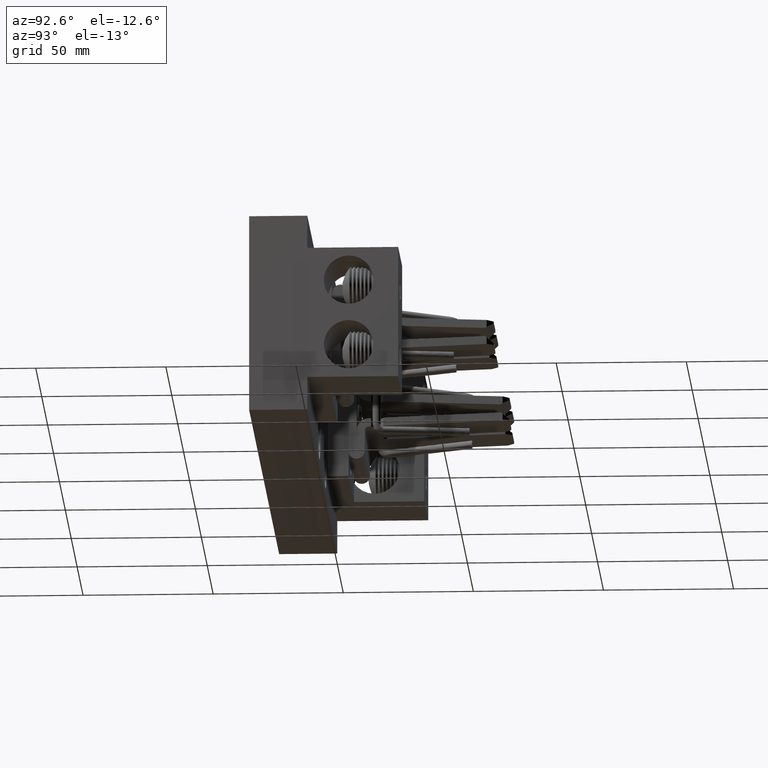
[diagram: clean part render]
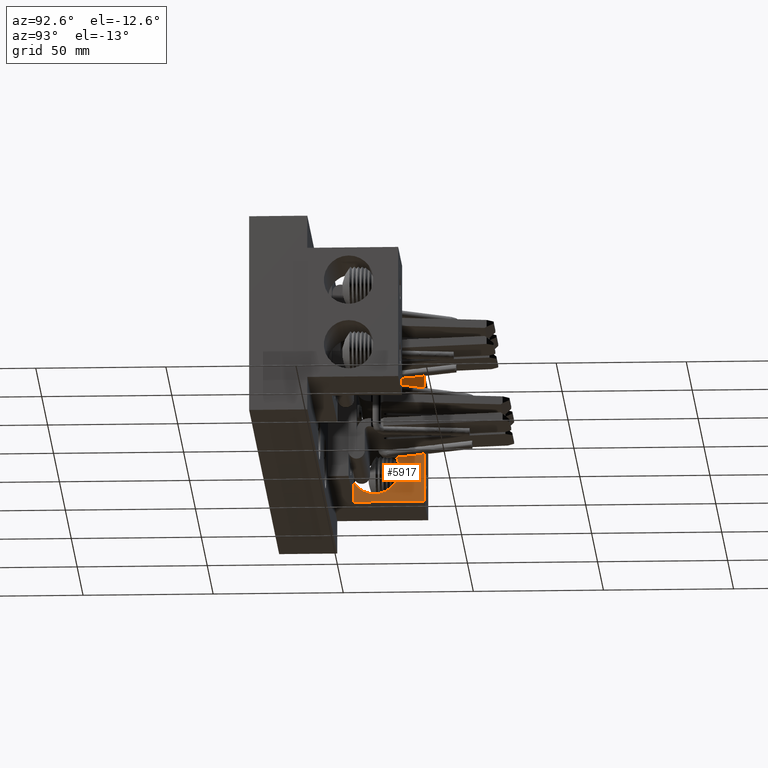
[diagram: same view with one face highlighted and labeled with its STEP entity id]
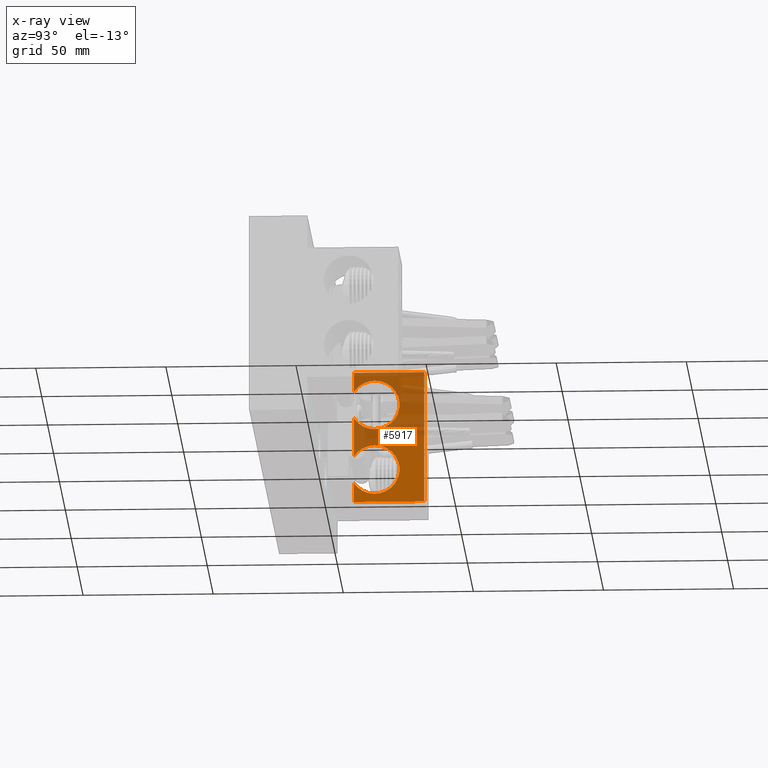
[diagram: x-ray of the same camera — body ghosted, the highlighted face saturated]
A machine part, auxiliary view. The second image highlights one B-rep face of the part: STEP entity #5917.
The next image is the same camera in x-ray: the body ghosted, the highlighted face saturated — about 48% of this face is hidden behind the body in this view.
In plain terms, the highlighted planar face has unit normal (-1, 0, 0).
Its self-contained STEP definition (entity closure, byte-faithful):
#242 = DIRECTION ( 'NONE',  ( 0.0000000000000000000, 1.000000000000000000, 0.0000000000000000000 ) ) ;
#254 = CARTESIAN_POINT ( 'NONE',  ( 1.312000000000000100, 1.375000000000000200, -1.000000000000000000 ) ) ;
#406 = DIRECTION ( 'NONE',  ( 0.0000000000000000000, 0.0000000000000000000, 1.000000000000000000 ) ) ;
#810 = VERTEX_POINT ( 'NONE', #17691 ) ;
#967 = CARTESIAN_POINT ( 'NONE',  ( 1.312000000000000100, 0.3119999999999998300, -0.2934667097051911800 ) ) ;
#1718 = FACE_OUTER_BOUND ( 'NONE', #17610, .T. ) ;
#1719 = DIRECTION ( 'NONE',  ( 0.0000000000000000000, 1.000000000000000000, 0.0000000000000000000 ) ) ;
#2269 = CIRCLE ( 'NONE', #7383, 0.3749999999999998300 ) ;
#2595 = CIRCLE ( 'NONE', #8368, 0.3749999999999998300 ) ;
#2680 = EDGE_CURVE ( 'NONE', #19076, #4228, #22764, .T. ) ;
#2782 = CARTESIAN_POINT ( 'NONE',  ( 1.312000000000000100, 0.3119999999999998300, -1.000000000000000000 ) ) ;
#4079 = EDGE_CURVE ( 'NONE', #5733, #4228, #2269, .T. ) ;
#4228 = VERTEX_POINT ( 'NONE', #967 ) ;
#4566 = VECTOR ( 'NONE', #1719, 39.37007874015748100 ) ;
#4585 = VECTOR ( 'NONE', #11054, 39.37007874015748100 ) ;
#4646 = VERTEX_POINT ( 'NONE', #21466 ) ;
#4759 = VECTOR ( 'NONE', #12050, 39.37007874015748100 ) ;
#4885 = ORIENTED_EDGE ( 'NONE', *, *, #4079, .F. ) ;
#5733 = VERTEX_POINT ( 'NONE', #16129 ) ;
#5917 = ADVANCED_FACE ( 'NONE', ( #1718 ), #7353, .F. ) ;
#6447 = CARTESIAN_POINT ( 'NONE',  ( 1.312000000000000100, 1.375000000000000200, 1.000000000000000000 ) ) ;
#6531 = ORIENTED_EDGE ( 'NONE', *, *, #21026, .T. ) ;
#6813 = ORIENTED_EDGE ( 'NONE', *, *, #15375, .T. ) ;
#6878 = EDGE_CURVE ( 'NONE', #15445, #4646, #7928, .T. ) ;
#6987 = LINE ( 'NONE', #20370, #7209 ) ;
#7209 = VECTOR ( 'NONE', #20229, 39.37007874015748100 ) ;
#7231 = VECTOR ( 'NONE', #242, 39.37007874015748100 ) ;
#7278 = CARTESIAN_POINT ( 'NONE',  ( 1.312000000000000100, 0.3119999999999998300, 0.2934667097051912300 ) ) ;
#7353 = PLANE ( 'NONE',  #17948 ) ;
#7383 = AXIS2_PLACEMENT_3D ( 'NONE', #22867, #11526, #406 ) ;
#7410 = ORIENTED_EDGE ( 'NONE', *, *, #12764, .F. ) ;
#7424 = DIRECTION ( 'NONE',  ( -1.000000000000000000, 0.0000000000000000000, 0.0000000000000000000 ) ) ;
#7928 = LINE ( 'NONE', #20478, #7231 ) ;
#8368 = AXIS2_PLACEMENT_3D ( 'NONE', #9135, #22293, #10958 ) ;
#9135 = CARTESIAN_POINT ( 'NONE',  ( 1.312000000000000100, 0.6250000000000000000, 0.5000000000000000000 ) ) ;
#10958 = DIRECTION ( 'NONE',  ( 0.0000000000000000000, 0.0000000000000000000, 1.000000000000000000 ) ) ;
#11054 = DIRECTION ( 'NONE',  ( -0.0000000000000000000, -0.0000000000000000000, -1.000000000000000000 ) ) ;
#11526 = DIRECTION ( 'NONE',  ( 1.000000000000000000, -0.0000000000000000000, -0.0000000000000000000 ) ) ;
#12050 = DIRECTION ( 'NONE',  ( -0.0000000000000000000, -0.0000000000000000000, -1.000000000000000000 ) ) ;
#12105 = CARTESIAN_POINT ( 'NONE',  ( 1.312000000000000100, 0.3119999999999998300, 1.000000000000000000 ) ) ;
#12764 = EDGE_CURVE ( 'NONE', #19076, #810, #2595, .T. ) ;
#13182 = LINE ( 'NONE', #24194, #4566 ) ;
#14012 = DIRECTION ( 'NONE',  ( -0.0000000000000000000, -0.0000000000000000000, -1.000000000000000000 ) ) ;
#14928 = VERTEX_POINT ( 'NONE', #254 ) ;
#15375 = EDGE_CURVE ( 'NONE', #5733, #16471, #6987, .T. ) ;
#15391 = EDGE_CURVE ( 'NONE', #16471, #14928, #13182, .T. ) ;
#15445 = VERTEX_POINT ( 'NONE', #18751 ) ;
#15809 = EDGE_CURVE ( 'NONE', #4646, #14928, #23616, .T. ) ;
#16129 = CARTESIAN_POINT ( 'NONE',  ( 1.312000000000000100, 0.3119999999999998300, -0.7065332902948088200 ) ) ;
#16471 = VERTEX_POINT ( 'NONE', #2782 ) ;
#16569 = LINE ( 'NONE', #22383, #4585 ) ;
#17610 = EDGE_LOOP ( 'NONE', ( #4885, #6813, #18288, #23558, #23749, #6531, #7410, #19223 ) ) ;
#17691 = CARTESIAN_POINT ( 'NONE',  ( 1.312000000000000100, 0.3119999999999998900, 0.7065332902948088200 ) ) ;
#17948 = AXIS2_PLACEMENT_3D ( 'NONE', #18681, #7424, #20558 ) ;
#18288 = ORIENTED_EDGE ( 'NONE', *, *, #15391, .T. ) ;
#18681 = CARTESIAN_POINT ( 'NONE',  ( 1.312000000000000100, 0.3119999999999998300, 1.000000000000000000 ) ) ;
#18751 = CARTESIAN_POINT ( 'NONE',  ( 1.312000000000000100, 0.3119999999999998300, 1.000000000000000000 ) ) ;
#19076 = VERTEX_POINT ( 'NONE', #7278 ) ;
#19223 = ORIENTED_EDGE ( 'NONE', *, *, #2680, .T. ) ;
#20229 = DIRECTION ( 'NONE',  ( -0.0000000000000000000, -0.0000000000000000000, -1.000000000000000000 ) ) ;
#20370 = CARTESIAN_POINT ( 'NONE',  ( 1.312000000000000100, 0.3119999999999998300, 1.000000000000000000 ) ) ;
#20478 = CARTESIAN_POINT ( 'NONE',  ( 1.312000000000000100, 0.3119999999999998300, 1.000000000000000000 ) ) ;
#20558 = DIRECTION ( 'NONE',  ( 0.0000000000000000000, 0.0000000000000000000, 1.000000000000000000 ) ) ;
#21026 = EDGE_CURVE ( 'NONE', #15445, #810, #16569, .T. ) ;
#21466 = CARTESIAN_POINT ( 'NONE',  ( 1.312000000000000100, 1.375000000000000200, 1.000000000000000000 ) ) ;
#22293 = DIRECTION ( 'NONE',  ( 1.000000000000000000, -0.0000000000000000000, -0.0000000000000000000 ) ) ;
#22383 = CARTESIAN_POINT ( 'NONE',  ( 1.312000000000000100, 0.3119999999999998300, 1.000000000000000000 ) ) ;
#22764 = LINE ( 'NONE', #12105, #23072 ) ;
#22867 = CARTESIAN_POINT ( 'NONE',  ( 1.312000000000000100, 0.6250000000000000000, -0.5000000000000000000 ) ) ;
#23072 = VECTOR ( 'NONE', #14012, 39.37007874015748100 ) ;
#23558 = ORIENTED_EDGE ( 'NONE', *, *, #15809, .F. ) ;
#23616 = LINE ( 'NONE', #6447, #4759 ) ;
#23749 = ORIENTED_EDGE ( 'NONE', *, *, #6878, .F. ) ;
#24194 = CARTESIAN_POINT ( 'NONE',  ( 1.312000000000000100, 0.3119999999999998300, -1.000000000000000000 ) ) ;